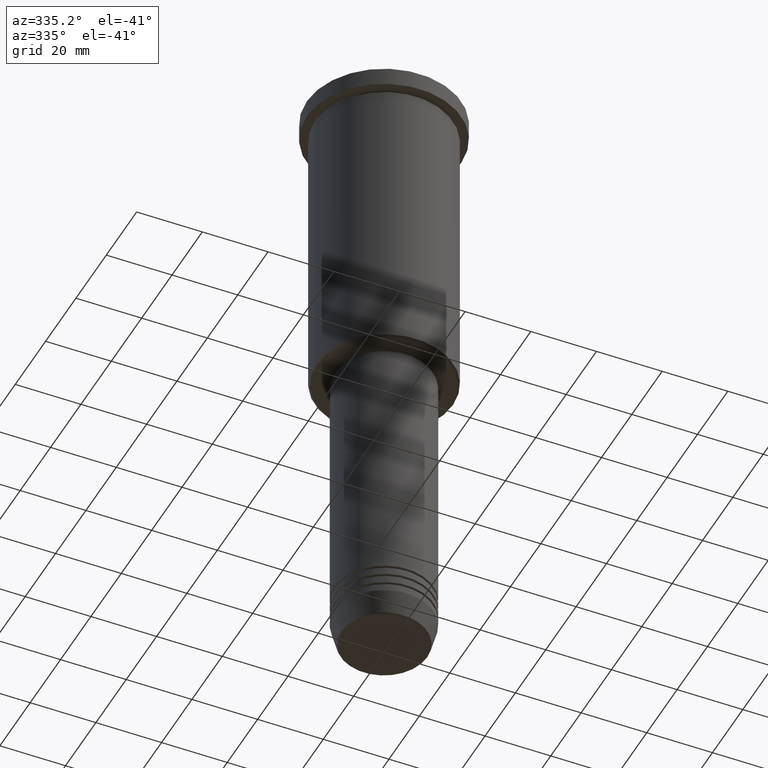
[diagram: clean part render]
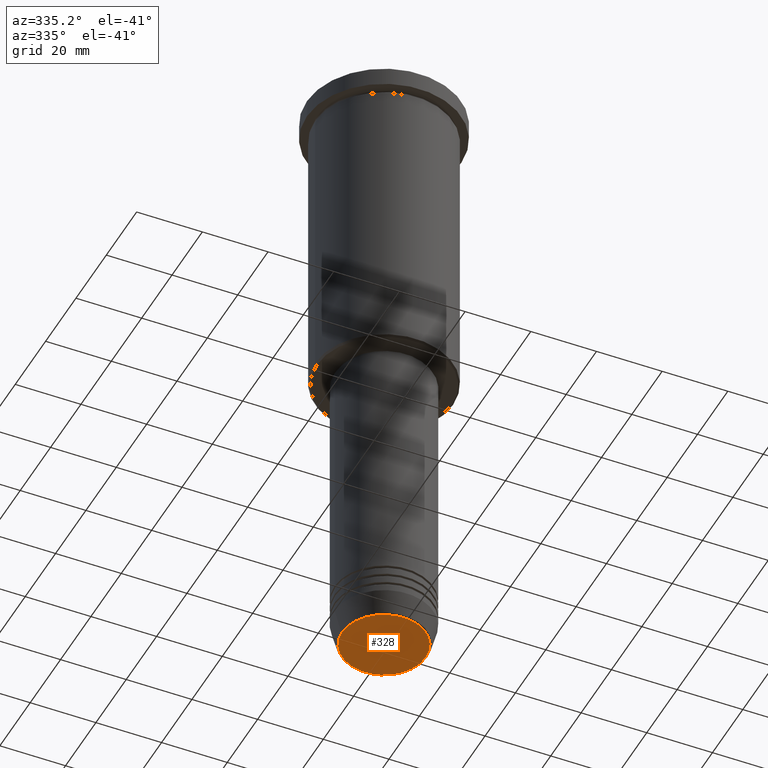
[diagram: same view with one face highlighted and labeled with its STEP entity id]
A machine part, auxiliary view. The second image highlights one B-rep face of the part: STEP entity #328.
In plain terms, the highlighted planar face has unit normal (0, -0, 1).
Its self-contained STEP definition (entity closure, byte-faithful):
#125 = DIRECTION ( 'NONE',  ( 0.000000000000000000, -0.000000000000000000, 1.000000000000000000 ) ) ;
#135 = CARTESIAN_POINT ( 'NONE',  ( 0.000000000000000000, 0.000000000000000000, -191.0000000000000000 ) ) ;
#154 = AXIS2_PLACEMENT_3D ( 'NONE', #135, #403, #581 ) ;
#223 = CIRCLE ( 'NONE', #154, 12.74069215899266538 ) ;
#228 = PLANE ( 'NONE',  #1109 ) ;
#292 = DIRECTION ( 'NONE',  ( 0.000000000000000000, 0.000000000000000000, -1.000000000000000000 ) ) ;
#328 = ADVANCED_FACE ( 'NONE', ( #1041 ), #228, .F. ) ;
#403 = DIRECTION ( 'NONE',  ( 0.000000000000000000, 0.000000000000000000, -1.000000000000000000 ) ) ;
#418 = EDGE_CURVE ( 'NONE', #1138, #681, #223, .T. ) ;
#527 = AXIS2_PLACEMENT_3D ( 'NONE', #556, #292, #917 ) ;
#535 = ORIENTED_EDGE ( 'NONE', *, *, #753, .T. ) ;
#556 = CARTESIAN_POINT ( 'NONE',  ( 0.000000000000000000, 0.000000000000000000, -191.0000000000000000 ) ) ;
#581 = DIRECTION ( 'NONE',  ( 1.000000000000000000, 0.000000000000000000, 0.000000000000000000 ) ) ;
#681 = VERTEX_POINT ( 'NONE', #824 ) ;
#753 = EDGE_CURVE ( 'NONE', #681, #1138, #840, .T. ) ;
#796 = DIRECTION ( 'NONE',  ( 1.000000000000000000, 0.000000000000000000, 0.000000000000000000 ) ) ;
#824 = CARTESIAN_POINT ( 'NONE',  ( 12.74069215899266538, 0.000000000000000000, -191.0000000000000000 ) ) ;
#840 = CIRCLE ( 'NONE', #527, 12.74069215899266538 ) ;
#865 = ORIENTED_EDGE ( 'NONE', *, *, #418, .T. ) ;
#897 = CARTESIAN_POINT ( 'NONE',  ( -12.74069215899266538, 1.589857736427681824E-15, -191.0000000000000000 ) ) ;
#917 = DIRECTION ( 'NONE',  ( 1.000000000000000000, 0.000000000000000000, 0.000000000000000000 ) ) ;
#1001 = CARTESIAN_POINT ( 'NONE',  ( 0.000000000000000000, 0.000000000000000000, -191.0000000000000000 ) ) ;
#1041 = FACE_OUTER_BOUND ( 'NONE', #1042, .T. ) ;
#1042 = EDGE_LOOP ( 'NONE', ( #535, #865 ) ) ;
#1109 = AXIS2_PLACEMENT_3D ( 'NONE', #1001, #125, #796 ) ;
#1138 = VERTEX_POINT ( 'NONE', #897 ) ;